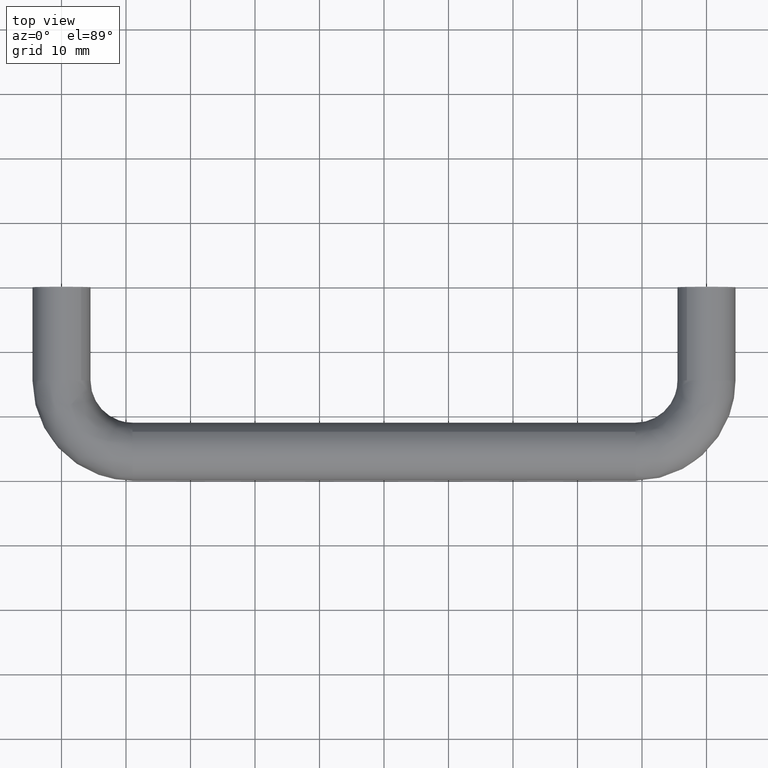
[diagram: clean part render]
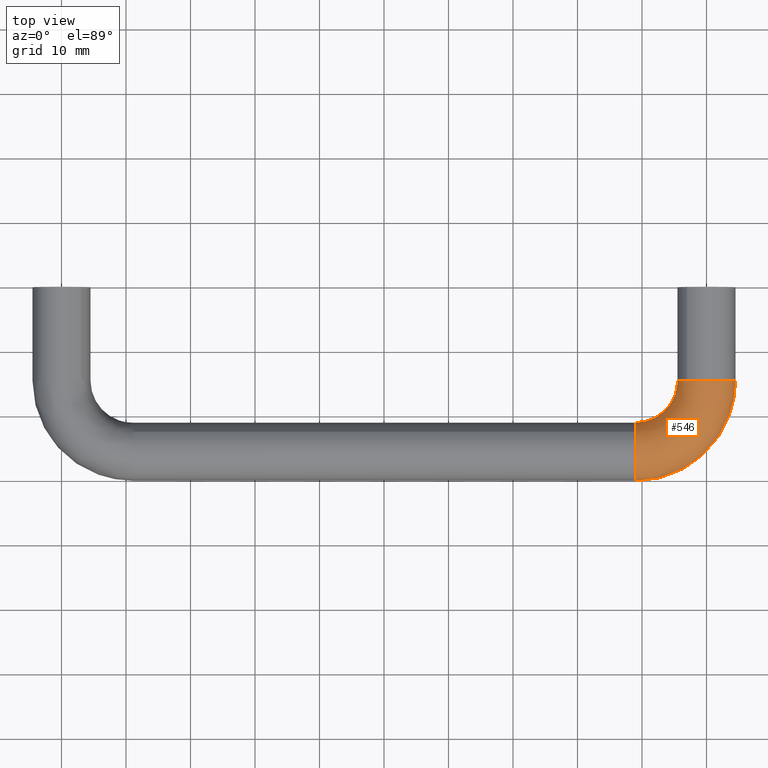
[diagram: same view with one face highlighted and labeled with its STEP entity id]
A machine part, top view. The second image highlights one B-rep face of the part: STEP entity #546.
In plain terms, the highlighted face is a freeform B-spline surface patch.
Its self-contained STEP definition (entity closure, byte-faithful):
#325=CARTESIAN_POINT('',(99.999998687781130,-14.499984633947181,4.499999999999809));
#326=VERTEX_POINT('',#325);
#327=CARTESIAN_POINT('',(96.959843823350297,-14.499995014940810,3.317748236800339));
#328=VERTEX_POINT('',#327);
#329=CARTESIAN_POINT('',(99.999998687781130,-14.499984633947181,4.499999999999809));
#330=CARTESIAN_POINT('',(99.617512702995782,-14.499985939993980,4.500105322239778));
#331=CARTESIAN_POINT('',(99.026494336592208,-14.499987958101091,4.424154081354201));
#332=CARTESIAN_POINT('',(97.969307955216195,-14.499991567997609,4.068581990265596));
#333=CARTESIAN_POINT('',(97.344154011428785,-14.499993702665080,3.670456101321176));
#334=CARTESIAN_POINT('',(96.959843823350297,-14.499995014940810,3.317748236800339));
#335=B_SPLINE_CURVE_WITH_KNOTS('',3,(#329,#330,#331,#332,#333,#334),.UNSPECIFIED.,.F.,.U.,(4,1,1,4),(0.000000026917966,1.147424853061990,1.773280584067730,3.337959714490046),.UNSPECIFIED.);
#336=EDGE_CURVE('',#326,#328,#335,.T.);
#338=CARTESIAN_POINT('',(104.499999999939110,-14.499969267825151,-5.510729E-016));
#339=VERTEX_POINT('',#338);
#340=CARTESIAN_POINT('',(104.499999999939110,-14.499969267825151,-5.510729E-016));
#341=CARTESIAN_POINT('',(104.500049509191600,-14.499969267656100,0.331339114684541));
#342=CARTESIAN_POINT('',(104.420401403604300,-14.499969539629900,1.049250408238249));
#343=CARTESIAN_POINT('',(104.096069895255400,-14.499970647122369,1.938526602702762));
#344=CARTESIAN_POINT('',(103.582843005719990,-14.499972399634560,2.771385163512822));
#345=CARTESIAN_POINT('',(102.926515273608000,-14.499974640792111,3.478019847988043));
#346=CARTESIAN_POINT('',(102.086964148026690,-14.499977507601169,4.024118073972804));
#347=CARTESIAN_POINT('',(101.104382903060700,-14.499980862814430,4.403123442691755));
#348=CARTESIAN_POINT('',(100.423397291260000,-14.499983188171051,4.500174550174743));
#349=CARTESIAN_POINT('',(99.999998687781130,-14.499984633947181,4.499999999999809));
#350=B_SPLINE_CURVE_WITH_KNOTS('',3,(#340,#341,#342,#343,#344,#345,#346,#347,#348,#349),.UNSPECIFIED.,.F.,.U.,(4,1,1,1,1,1,1,4),(0.000000129973041,0.994023880457754,2.153731769098494,2.816411401917423,3.920848825400633,5.025345881804938,5.798488213860878,7.068628562518700),.UNSPECIFIED.);
#351=EDGE_CURVE('',#339,#326,#350,.T.);
#398=CARTESIAN_POINT('',(95.500000000000000,-14.500000000060250,-2.210293E-016));
#399=VERTEX_POINT('',#398);
#400=CARTESIAN_POINT('',(96.959843823350297,-14.499995014940810,3.317748236800339));
#401=CARTESIAN_POINT('',(96.701926198230126,-14.499995895664579,3.081512983984335));
#402=CARTESIAN_POINT('',(96.280030739917578,-14.499997336337630,2.592897081363391));
#403=CARTESIAN_POINT('',(95.813113548919759,-14.499998930768390,1.735683702330435));
#404=CARTESIAN_POINT('',(95.554747406298318,-14.499999813061640,0.874376961058344));
#405=CARTESIAN_POINT('',(95.499983293772644,-14.500000000100790,0.272024781845362));
#406=CARTESIAN_POINT('',(95.500000000000000,-14.500000000060250,-2.210293E-016));
#407=B_SPLINE_CURVE_WITH_KNOTS('',3,(#400,#401,#402,#403,#404,#405,#406),.UNSPECIFIED.,.F.,.U.,(4,1,1,1,4),(0.000000036382892,1.049251759840095,1.923606279233234,2.914585473381468,3.730667463465502),.UNSPECIFIED.);
#408=EDGE_CURVE('',#328,#399,#407,.T.);
#441=CARTESIAN_POINT('',(87.922173485634119,-29.962480072903233,-0.125805319613362));
#442=CARTESIAN_POINT('',(105.701862803990920,-31.201829806850210,-0.125805319613362));
#443=CARTESIAN_POINT('',(104.462477943456210,-13.422142937059665,-0.125805319613362));
#444=CARTESIAN_POINT('',(87.922173485634133,-29.962480072903240,-0.063268989149130));
#445=CARTESIAN_POINT('',(105.701862803990920,-31.201829806850217,-0.063268989149130));
#446=CARTESIAN_POINT('',(104.462477943456210,-13.422142937059666,-0.063268989149130));
#447=CARTESIAN_POINT('',(87.922173485634104,-29.962480072903240,4.499999999999999));
#448=CARTESIAN_POINT('',(105.701862803990910,-31.201829806850220,4.499999999999999));
#449=CARTESIAN_POINT('',(104.462477943456190,-13.422142937059668,4.499999999999998));
#450=CARTESIAN_POINT('',(88.235090860772601,-25.473372954963590,4.499999999999998));
#451=CARTESIAN_POINT('',(100.852934893154820,-26.352911475829192,4.499999999999997));
#452=CARTESIAN_POINT('',(99.973371443743133,-13.735069181139124,4.499999999999998));
#453=CARTESIAN_POINT('',(88.548008235911084,-20.984265837023944,4.499999999999999));
#454=CARTESIAN_POINT('',(96.004006982318771,-21.503993144808160,4.499999999999999));
#455=CARTESIAN_POINT('',(95.484264944030016,-14.047995425218573,4.499999999999998));
#456=CARTESIAN_POINT('',(88.548008235911070,-20.984265837023941,-0.063268989149130));
#457=CARTESIAN_POINT('',(96.004006982318757,-21.503993144808156,-0.063268989149130));
#458=CARTESIAN_POINT('',(95.484264944030016,-14.047995425218575,-0.063268989149130));
#459=CARTESIAN_POINT('',(88.548008235911070,-20.984265837023941,-0.125805319613363));
#460=CARTESIAN_POINT('',(96.004006982318771,-21.503993144808156,-0.125805319613363));
#461=CARTESIAN_POINT('',(95.484264944030016,-14.047995425218572,-0.125805319613363));
#469=(BOUNDED_SURFACE()B_SPLINE_SURFACE(2,2,((#441,#444,#447,#450,#453,#456,#459),(#442,#445,#448,#451,#454,#457,#460),(#443,#446,#449,#452,#455,#458,#461)),.UNSPECIFIED.,.F.,.F.,.U.)B_SPLINE_SURFACE_WITH_KNOTS((3,3),(3,1,2,1,3),(0.0,28.246835812196881),(0.0,0.149116882454315,7.604961005170038,15.060805127885761,15.209922010340080),.UNSPECIFIED.)GEOMETRIC_REPRESENTATION_ITEM()RATIONAL_B_SPLINE_SURFACE(((0.927077751767541,0.921709943813417,0.647951738153070,0.916342135859292,0.647951738153070,0.921709943813417,0.927077751767541),(0.608371095267537,0.604848608401673,0.425201778242576,0.601326121535808,0.425201778242576,0.604848608401673,0.608371095267537),(0.927078586229025,0.921710773443344,0.647952321373591,0.916342960657662,0.647952321373591,0.921710773443344,0.927078586229025)))REPRESENTATION_ITEM('')SURFACE());
#470=CARTESIAN_POINT('',(89.000000000147381,-30.0,-5.510729E-016));
#471=VERTEX_POINT('',#470);
#472=CARTESIAN_POINT('',(89.000000000147381,-30.0,-5.510729E-016));
#473=CARTESIAN_POINT('',(89.697441157582702,-30.000019815839771,-5.510729E-016));
#474=CARTESIAN_POINT('',(91.187440250064981,-29.899275501994978,-5.510729E-016));
#475=CARTESIAN_POINT('',(93.612174697475169,-29.378279686482191,-5.510729E-016));
#476=CARTESIAN_POINT('',(95.738523047888137,-28.520337910850539,-5.510729E-016));
#477=CARTESIAN_POINT('',(97.712968886124585,-27.369520484122550,-5.510729E-016));
#478=CARTESIAN_POINT('',(99.202402969906132,-26.229051505967330,-5.510729E-016));
#479=CARTESIAN_POINT('',(100.616794606403000,-24.814619486838200,-5.510729E-016));
#480=CARTESIAN_POINT('',(101.916639898204490,-23.169988253070361,-5.510729E-016));
#481=CARTESIAN_POINT('',(103.232655120182100,-20.880178000405671,-5.510729E-016));
#482=CARTESIAN_POINT('',(104.250305003990800,-17.892044256110569,-5.510729E-016));
#483=CARTESIAN_POINT('',(104.500197847913200,-15.641260592065370,-5.510729E-016));
#484=CARTESIAN_POINT('',(104.499999999939110,-14.499969267825151,-5.510729E-016));
#485=B_SPLINE_CURVE_WITH_KNOTS('',3,(#472,#473,#474,#475,#476,#477,#478,#479,#480,#481,#482,#483,#484),.UNSPECIFIED.,.F.,.U.,(4,1,1,1,1,1,1,1,1,1,4),(0.000000066991046,2.092327024257028,4.470018795674069,7.418357013921970,8.940080469457582,11.317759054520550,13.029641260752230,14.931777857241210,17.594797794547681,20.923565359673312,24.347398580301959),.UNSPECIFIED.);
#486=EDGE_CURVE('',#471,#339,#485,.T.);
#487=ORIENTED_EDGE('',*,*,#486,.T.);
#488=ORIENTED_EDGE('',*,*,#351,.T.);
#489=ORIENTED_EDGE('',*,*,#336,.T.);
#490=ORIENTED_EDGE('',*,*,#408,.T.);
#491=CARTESIAN_POINT('',(89.000000000223238,-21.0,-1.105147E-016));
#492=VERTEX_POINT('',#491);
#493=CARTESIAN_POINT('',(89.000000000223238,-21.0,-1.105147E-016));
#494=CARTESIAN_POINT('',(89.505202519210826,-21.000122870544441,-1.660745E-016));
#495=CARTESIAN_POINT('',(90.249633413706931,-20.912740239140959,-2.398044E-016));
#496=CARTESIAN_POINT('',(91.296360748145204,-20.602206714853740,-3.260307E-016));
#497=CARTESIAN_POINT('',(92.147525624272674,-20.218660536198801,-3.839678E-016));
#498=CARTESIAN_POINT('',(93.127397356831565,-19.572657751270778,-4.316612E-016));
#499=CARTESIAN_POINT('',(94.008155630573839,-18.713272582299691,-4.486227E-016));
#500=CARTESIAN_POINT('',(94.696757893071251,-17.696160527789139,-4.297953E-016));
#501=CARTESIAN_POINT('',(95.178950530164201,-16.626135921645680,-3.833544E-016));
#502=CARTESIAN_POINT('',(95.445127178234287,-15.563564795864551,-3.138548E-016));
#503=CARTESIAN_POINT('',(95.500003283895694,-14.819063100986339,-2.506867E-016));
#504=CARTESIAN_POINT('',(95.500000000000000,-14.500000000060250,-2.210293E-016));
#505=B_SPLINE_CURVE_WITH_KNOTS('',3,(#493,#494,#495,#496,#497,#498,#499,#500,#501,#502,#503,#504),.UNSPECIFIED.,.F.,.U.,(4,1,1,1,1,1,1,1,1,4),(0.000000105383084,1.515575217236885,2.233484798126585,3.270470643887824,4.307475667016012,5.743256647739758,6.939770858460943,7.976755871359831,9.253038011689130,10.210240188533190),.UNSPECIFIED.);
#506=EDGE_CURVE('',#492,#399,#505,.T.);
#507=ORIENTED_EDGE('',*,*,#506,.F.);
#508=CARTESIAN_POINT('',(89.000000000211301,-22.459843823345700,3.317748236792478));
#509=VERTEX_POINT('',#508);
#510=CARTESIAN_POINT('',(89.000000000211301,-22.459843823345700,3.317748236792478));
#511=CARTESIAN_POINT('',(89.000000000213745,-22.158905764749811,3.042164715641997));
#512=CARTESIAN_POINT('',(89.000000000217284,-21.745646009634338,2.544185631447464));
#513=CARTESIAN_POINT('',(89.000000000220382,-21.332270213990991,1.748661098214341));
#514=CARTESIAN_POINT('',(89.000000000222855,-21.070596509815559,0.952065647416909));
#515=CARTESIAN_POINT('',(89.000000000223267,-20.999920284227411,0.349756145389023));
#516=CARTESIAN_POINT('',(89.000000000223238,-21.0,-1.105147E-016));
#517=B_SPLINE_CURVE_WITH_KNOTS('',3,(#510,#511,#512,#513,#514,#515,#516),.UNSPECIFIED.,.F.,.U.,(4,1,1,1,4),(0.000000036382441,1.224130083459019,1.923606279226009,2.681415740016601,3.730667463451531),.UNSPECIFIED.);
#518=EDGE_CURVE('',#509,#492,#517,.T.);
#519=ORIENTED_EDGE('',*,*,#518,.F.);
#520=CARTESIAN_POINT('',(89.000000000185310,-25.499998687811591,4.499999999999809));
#521=VERTEX_POINT('',#520);
#522=CARTESIAN_POINT('',(89.000000000185310,-25.499998687811591,4.499999999999809));
#523=CARTESIAN_POINT('',(89.000000000188109,-25.187063342715071,4.500047495765340));
#524=CARTESIAN_POINT('',(89.000000000192628,-24.613386652937571,4.439894855533510));
#525=CARTESIAN_POINT('',(89.000000000202220,-23.544889057761019,4.114708523466404));
#526=CARTESIAN_POINT('',(89.000000000207947,-22.856936203971070,3.682253894163673));
#527=CARTESIAN_POINT('',(89.000000000211301,-22.459843823345700,3.317748236792478));
#528=B_SPLINE_CURVE_WITH_KNOTS('',3,(#522,#523,#524,#525,#526,#527),.UNSPECIFIED.,.F.,.U.,(4,1,1,4),(0.000000026925978,0.938803312619440,1.721117551272277,3.337959714510171),.UNSPECIFIED.);
#529=EDGE_CURVE('',#521,#509,#528,.T.);
#530=ORIENTED_EDGE('',*,*,#529,.F.);
#531=CARTESIAN_POINT('',(89.000000000147381,-30.0,-5.510729E-016));
#532=CARTESIAN_POINT('',(89.000000000147395,-30.000046234572650,0.312928722882716));
#533=CARTESIAN_POINT('',(89.000000000147892,-29.942158641374530,0.865142326922342));
#534=CARTESIAN_POINT('',(89.000000000149925,-29.700560299403701,1.679516007485722));
#535=CARTESIAN_POINT('',(89.000000000153534,-29.276543883644472,2.522189711355116));
#536=CARTESIAN_POINT('',(89.000000000159076,-28.594839140254031,3.332371608396679));
#537=CARTESIAN_POINT('',(89.000000000167901,-27.629258660050169,4.021321256805903));
#538=CARTESIAN_POINT('',(89.000000000174794,-26.586085903376230,4.416402584291364));
#539=CARTESIAN_POINT('',(89.000000000184230,-25.831330556002609,4.500027926427997));
#540=CARTESIAN_POINT('',(89.000000000185310,-25.499998687811591,4.499999999999809));
#541=B_SPLINE_CURVE_WITH_KNOTS('',3,(#531,#532,#533,#534,#535,#536,#537,#538,#539,#540),.UNSPECIFIED.,.F.,.U.,(4,1,1,1,1,1,1,4),(0.000000129986875,0.938782926615852,1.656708308289629,2.540295180787362,3.755170576370046,4.804454692762693,6.074607144324864,7.068628562522965),.UNSPECIFIED.);
#542=EDGE_CURVE('',#471,#521,#541,.T.);
#543=ORIENTED_EDGE('',*,*,#542,.F.);
#544=EDGE_LOOP('',(#487,#488,#489,#490,#507,#519,#530,#543));
#545=FACE_OUTER_BOUND('',#544,.T.);
#546=ADVANCED_FACE('',(#545),#469,.T.);